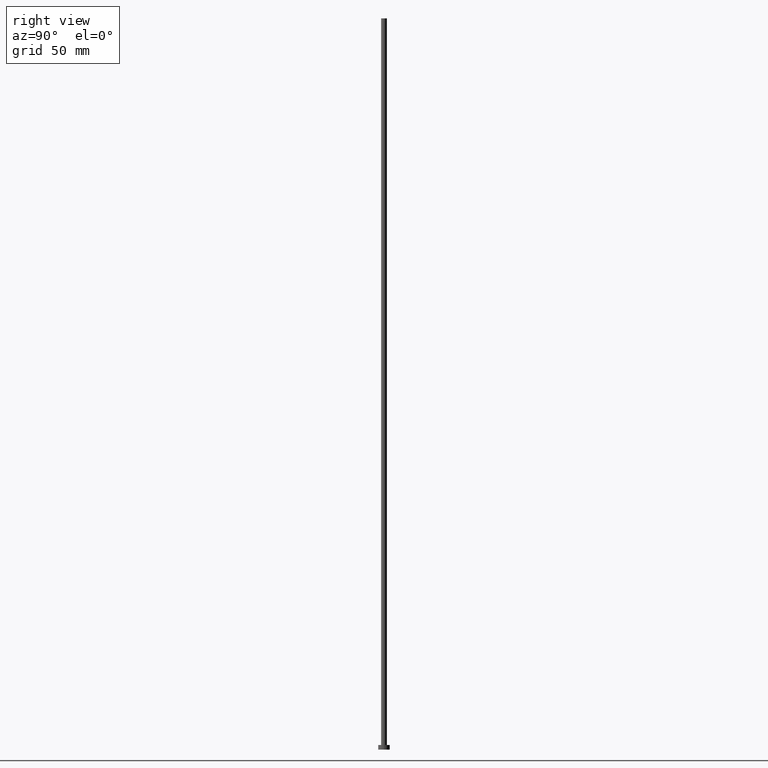
[diagram: clean part render]
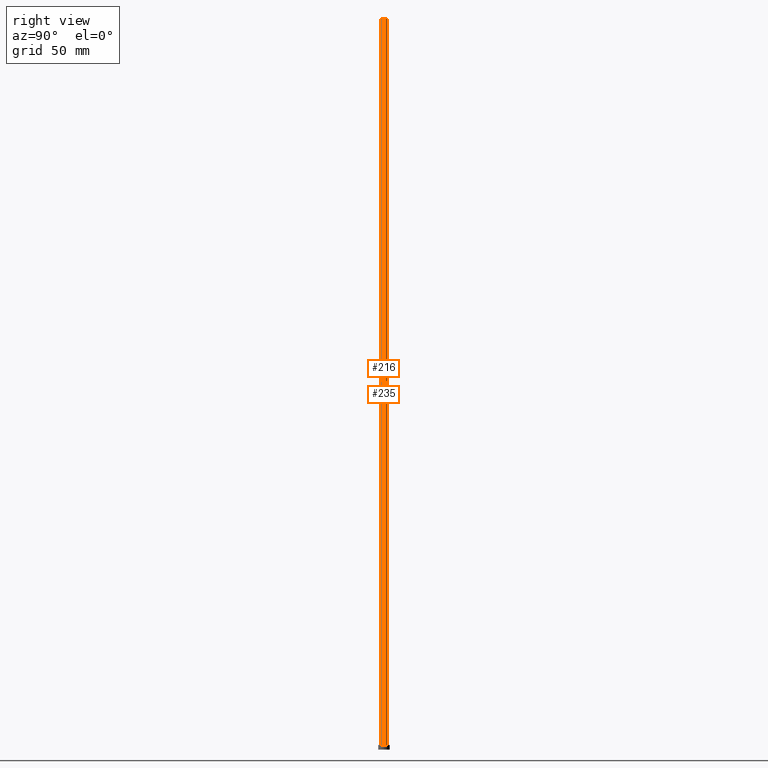
[diagram: same view with one multi-face feature highlighted, each face labeled with its STEP entity id]
A machine part, right view. The highlighted faces form ONE feature: a constant-radius fillet chain: 2 tangent blend faces with common blend radius 1.25 mm. The faces share edges in the B-rep.
Their STEP definitions:
[1] entity #235 (Cylinder):
#1 = VECTOR ( 'NONE', #248, 1000.000000000000000 ) ;
#8 = AXIS2_PLACEMENT_3D ( 'NONE', #149, #137, #238 ) ;
#25 = DIRECTION ( 'NONE',  ( 0.000000000000000000, 0.000000000000000000, 1.000000000000000000 ) ) ;
#30 = CARTESIAN_POINT ( 'NONE',  ( 1.250000000000000000, 1.530808498934191571E-16, 315.0000000000000000 ) ) ;
#35 = ORIENTED_EDGE ( 'NONE', *, *, #153, .T. ) ;
#48 = CARTESIAN_POINT ( 'NONE',  ( -1.250000000000000000, 0.000000000000000000, 315.0000000000000000 ) ) ;
#63 = CARTESIAN_POINT ( 'NONE',  ( 0.000000000000000000, 0.000000000000000000, 315.0000000000000000 ) ) ;
#70 = FACE_OUTER_BOUND ( 'NONE', #222, .T. ) ;
#82 = VERTEX_POINT ( 'NONE', #98 ) ;
#83 = VECTOR ( 'NONE', #219, 1000.000000000000000 ) ;
#85 = VERTEX_POINT ( 'NONE', #109 ) ;
#88 = AXIS2_PLACEMENT_3D ( 'NONE', #63, #187, #132 ) ;
#98 = CARTESIAN_POINT ( 'NONE',  ( -1.250000000000000000, 0.000000000000000000, 2.000000000000000000 ) ) ;
#101 = CARTESIAN_POINT ( 'NONE',  ( 1.250000000000000000, 1.530808498934191571E-16, 315.0000000000000000 ) ) ;
#109 = CARTESIAN_POINT ( 'NONE',  ( -1.250000000000000000, 0.000000000000000000, 315.0000000000000000 ) ) ;
#110 = EDGE_CURVE ( 'NONE', #159, #85, #188, .T. ) ;
#113 = DIRECTION ( 'NONE',  ( 1.000000000000000000, 0.000000000000000000, 0.000000000000000000 ) ) ;
#114 = EDGE_CURVE ( 'NONE', #160, #82, #230, .T. ) ;
#115 = LINE ( 'NONE', #101, #1 ) ;
#132 = DIRECTION ( 'NONE',  ( 1.000000000000000000, 0.000000000000000000, 0.000000000000000000 ) ) ;
#134 = AXIS2_PLACEMENT_3D ( 'NONE', #166, #25, #113 ) ;
#137 = DIRECTION ( 'NONE',  ( -0.000000000000000000, -0.000000000000000000, -1.000000000000000000 ) ) ;
#141 = EDGE_CURVE ( 'NONE', #85, #82, #156, .T. ) ;
#149 = CARTESIAN_POINT ( 'NONE',  ( 0.000000000000000000, 0.000000000000000000, 315.0000000000000000 ) ) ;
#153 = EDGE_CURVE ( 'NONE', #159, #160, #115, .T. ) ;
#156 = LINE ( 'NONE', #48, #83 ) ;
#159 = VERTEX_POINT ( 'NONE', #30 ) ;
#160 = VERTEX_POINT ( 'NONE', #179 ) ;
#166 = CARTESIAN_POINT ( 'NONE',  ( 0.000000000000000000, 0.000000000000000000, 2.000000000000000000 ) ) ;
#179 = CARTESIAN_POINT ( 'NONE',  ( 1.250000000000000000, 1.530808498934191571E-16, 2.000000000000000000 ) ) ;
#187 = DIRECTION ( 'NONE',  ( 0.000000000000000000, 0.000000000000000000, 1.000000000000000000 ) ) ;
#188 = CIRCLE ( 'NONE', #88, 1.250000000000000000 ) ;
#193 = CYLINDRICAL_SURFACE ( 'NONE', #8, 1.250000000000000000 ) ;
#206 = ORIENTED_EDGE ( 'NONE', *, *, #110, .F. ) ;
#219 = DIRECTION ( 'NONE',  ( -0.000000000000000000, -0.000000000000000000, -1.000000000000000000 ) ) ;
#222 = EDGE_LOOP ( 'NONE', ( #206, #35, #228, #246 ) ) ;
#228 = ORIENTED_EDGE ( 'NONE', *, *, #114, .T. ) ;
#230 = CIRCLE ( 'NONE', #134, 1.250000000000000000 ) ;
#235 = ADVANCED_FACE ( 'NONE', ( #70 ), #193, .T. ) ;
#238 = DIRECTION ( 'NONE',  ( -1.000000000000000000, 0.000000000000000000, 0.000000000000000000 ) ) ;
#246 = ORIENTED_EDGE ( 'NONE', *, *, #141, .F. ) ;
#248 = DIRECTION ( 'NONE',  ( -0.000000000000000000, -0.000000000000000000, -1.000000000000000000 ) ) ;
[2] entity #216 (Cylinder):
#1 = VECTOR ( 'NONE', #248, 1000.000000000000000 ) ;
#2 = CARTESIAN_POINT ( 'NONE',  ( 0.000000000000000000, 0.000000000000000000, 315.0000000000000000 ) ) ;
#28 = DIRECTION ( 'NONE',  ( 1.000000000000000000, 0.000000000000000000, 0.000000000000000000 ) ) ;
#30 = CARTESIAN_POINT ( 'NONE',  ( 1.250000000000000000, 1.530808498934191571E-16, 315.0000000000000000 ) ) ;
#31 = ORIENTED_EDGE ( 'NONE', *, *, #162, .T. ) ;
#40 = DIRECTION ( 'NONE',  ( -1.000000000000000000, 0.000000000000000000, 0.000000000000000000 ) ) ;
#46 = DIRECTION ( 'NONE',  ( 0.000000000000000000, 0.000000000000000000, 1.000000000000000000 ) ) ;
#48 = CARTESIAN_POINT ( 'NONE',  ( -1.250000000000000000, 0.000000000000000000, 315.0000000000000000 ) ) ;
#58 = ORIENTED_EDGE ( 'NONE', *, *, #153, .F. ) ;
#65 = CIRCLE ( 'NONE', #158, 1.250000000000000000 ) ;
#77 = DIRECTION ( 'NONE',  ( 0.000000000000000000, 0.000000000000000000, 1.000000000000000000 ) ) ;
#79 = DIRECTION ( 'NONE',  ( 1.000000000000000000, 0.000000000000000000, 0.000000000000000000 ) ) ;
#82 = VERTEX_POINT ( 'NONE', #98 ) ;
#83 = VECTOR ( 'NONE', #219, 1000.000000000000000 ) ;
#85 = VERTEX_POINT ( 'NONE', #109 ) ;
#98 = CARTESIAN_POINT ( 'NONE',  ( -1.250000000000000000, 0.000000000000000000, 2.000000000000000000 ) ) ;
#100 = EDGE_CURVE ( 'NONE', #85, #159, #65, .T. ) ;
#101 = CARTESIAN_POINT ( 'NONE',  ( 1.250000000000000000, 1.530808498934191571E-16, 315.0000000000000000 ) ) ;
#105 = FACE_OUTER_BOUND ( 'NONE', #125, .T. ) ;
#109 = CARTESIAN_POINT ( 'NONE',  ( -1.250000000000000000, 0.000000000000000000, 315.0000000000000000 ) ) ;
#115 = LINE ( 'NONE', #101, #1 ) ;
#125 = EDGE_LOOP ( 'NONE', ( #58, #146, #145, #31 ) ) ;
#141 = EDGE_CURVE ( 'NONE', #85, #82, #156, .T. ) ;
#143 = CARTESIAN_POINT ( 'NONE',  ( 0.000000000000000000, 0.000000000000000000, 315.0000000000000000 ) ) ;
#145 = ORIENTED_EDGE ( 'NONE', *, *, #141, .T. ) ;
#146 = ORIENTED_EDGE ( 'NONE', *, *, #100, .F. ) ;
#153 = EDGE_CURVE ( 'NONE', #159, #160, #115, .T. ) ;
#156 = LINE ( 'NONE', #48, #83 ) ;
#158 = AXIS2_PLACEMENT_3D ( 'NONE', #2, #46, #28 ) ;
#159 = VERTEX_POINT ( 'NONE', #30 ) ;
#160 = VERTEX_POINT ( 'NONE', #179 ) ;
#162 = EDGE_CURVE ( 'NONE', #82, #160, #218, .T. ) ;
#179 = CARTESIAN_POINT ( 'NONE',  ( 1.250000000000000000, 1.530808498934191571E-16, 2.000000000000000000 ) ) ;
#205 = AXIS2_PLACEMENT_3D ( 'NONE', #143, #227, #40 ) ;
#216 = ADVANCED_FACE ( 'NONE', ( #105 ), #250, .T. ) ;
#218 = CIRCLE ( 'NONE', #233, 1.250000000000000000 ) ;
#219 = DIRECTION ( 'NONE',  ( -0.000000000000000000, -0.000000000000000000, -1.000000000000000000 ) ) ;
#227 = DIRECTION ( 'NONE',  ( -0.000000000000000000, -0.000000000000000000, -1.000000000000000000 ) ) ;
#233 = AXIS2_PLACEMENT_3D ( 'NONE', #247, #77, #79 ) ;
#247 = CARTESIAN_POINT ( 'NONE',  ( 0.000000000000000000, 0.000000000000000000, 2.000000000000000000 ) ) ;
#248 = DIRECTION ( 'NONE',  ( -0.000000000000000000, -0.000000000000000000, -1.000000000000000000 ) ) ;
#250 = CYLINDRICAL_SURFACE ( 'NONE', #205, 1.250000000000000000 ) ;